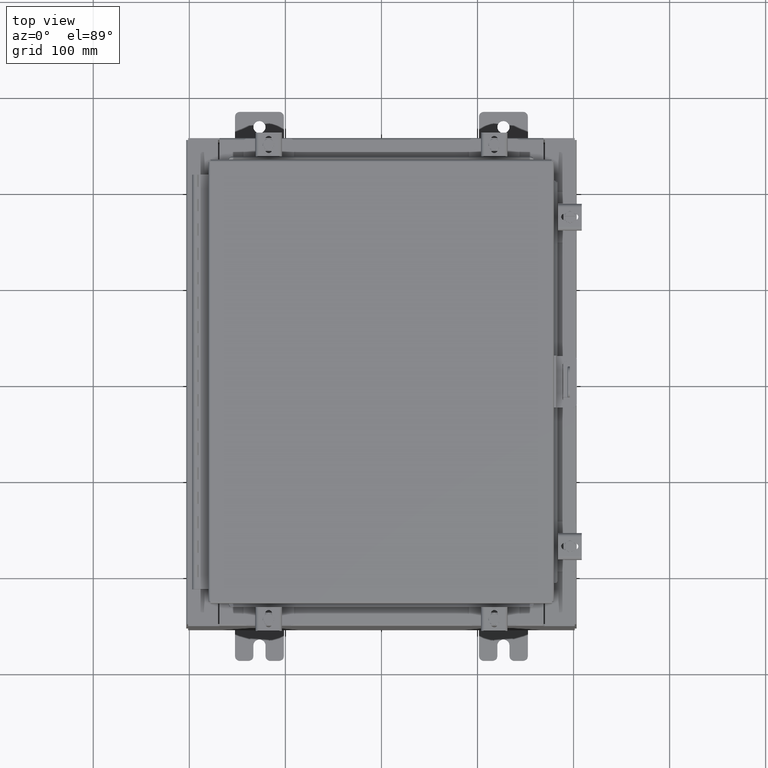
[diagram: clean part render]
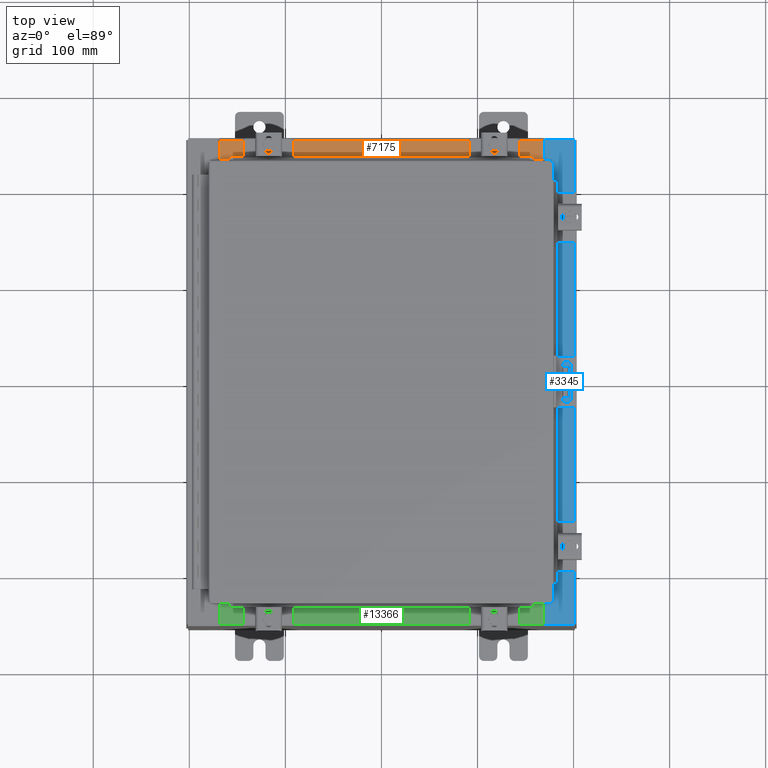
[diagram: same view with three faces highlighted in distinct colors, each labeled with its STEP entity id]
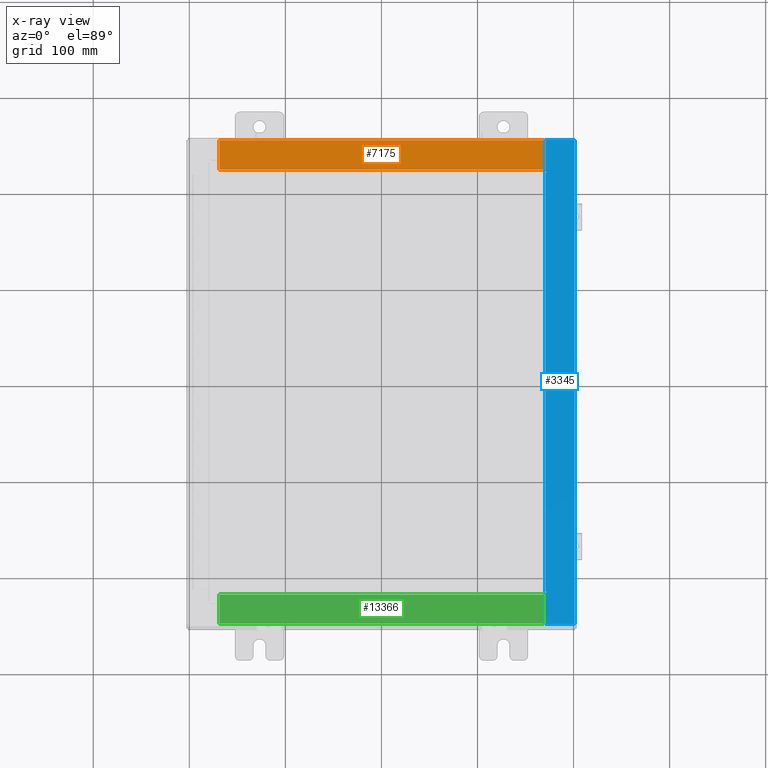
[diagram: x-ray of the same camera — body ghosted, the three highlighted faces saturated]
A machine part, top view with three faces highlighted in distinct colors.
The next image is the same camera in x-ray (body ghosted, the three faces saturated) — at least one of them is partly hidden behind the body in this view.
Their STEP definitions:

[orange] entity #7175 — the highlighted planar face has unit normal (0, 0, 1).
#70 = LINE ( 'NONE', #23277, #23620 ) ;
#561 = DIRECTION ( 'NONE',  ( -1.000000000000000000, 0.0000000000000000000, 0.0000000000000000000 ) ) ;
#709 = FACE_OUTER_BOUND ( 'NONE', #24726, .T. ) ;
#2360 = VERTEX_POINT ( 'NONE', #28132 ) ;
#2674 = ORIENTED_EDGE ( 'NONE', *, *, #19254, .T. ) ;
#5589 = EDGE_CURVE ( 'NONE', #19066, #2360, #15018, .T. ) ;
#5774 = VECTOR ( 'NONE', #13364, 39.37007874015748100 ) ;
#7175 = ADVANCED_FACE ( 'NONE', ( #709 ), #12864, .T. ) ;
#7626 = ORIENTED_EDGE ( 'NONE', *, *, #22999, .F. ) ;
#7715 = VERTEX_POINT ( 'NONE', #14905 ) ;
#8390 = DIRECTION ( 'NONE',  ( 0.0000000000000000000, -1.000000000000000000, 3.566381192773190000E-015 ) ) ;
#10143 = ORIENTED_EDGE ( 'NONE', *, *, #5589, .F. ) ;
#11087 = CARTESIAN_POINT ( 'NONE',  ( 6.637200000000000000, -1.300299999999999800, 5.000000000000005300 ) ) ;
#12363 = VECTOR ( 'NONE', #21803, 39.37007874015748100 ) ;
#12454 = AXIS2_PLACEMENT_3D ( 'NONE', #15121, #21988, #8390 ) ;
#12473 = LINE ( 'NONE', #11087, #5774 ) ;
#12864 = PLANE ( 'NONE',  #12454 ) ;
#13063 = LINE ( 'NONE', #19560, #12363 ) ;
#13364 = DIRECTION ( 'NONE',  ( -0.0000000000000000000, -1.000000000000000000, 3.566381192773190000E-015 ) ) ;
#14905 = CARTESIAN_POINT ( 'NONE',  ( 6.637199999999999100, -0.08769999999999993100, 5.000000000000000900 ) ) ;
#15018 = LINE ( 'NONE', #15391, #25717 ) ;
#15121 = CARTESIAN_POINT ( 'NONE',  ( 0.0000000000000000000, 1.782631094477738200E-014, 5.000000000000000900 ) ) ;
#15391 = CARTESIAN_POINT ( 'NONE',  ( 6.637200000000000900, -1.287299999999999900, 5.000000000000005300 ) ) ;
#15801 = CARTESIAN_POINT ( 'NONE',  ( 6.637200000000000000, -1.287299999999999900, 5.000000000000005300 ) ) ;
#19066 = VERTEX_POINT ( 'NONE', #15801 ) ;
#19254 = EDGE_CURVE ( 'NONE', #7715, #24268, #70, .T. ) ;
#19560 = CARTESIAN_POINT ( 'NONE',  ( -6.637200000000000000, -0.07469999999999973900, 5.000000000000000900 ) ) ;
#20757 = ORIENTED_EDGE ( 'NONE', *, *, #27043, .F. ) ;
#21803 = DIRECTION ( 'NONE',  ( -0.0000000000000000000, 1.000000000000000000, -3.566381192773190000E-015 ) ) ;
#21988 = DIRECTION ( 'NONE',  ( 0.0000000000000000000, 3.566381192773190000E-015, 1.000000000000000000 ) ) ;
#22999 = EDGE_CURVE ( 'NONE', #2360, #24268, #13063, .T. ) ;
#23277 = CARTESIAN_POINT ( 'NONE',  ( 0.0000000000000000000, -0.08770000000000026400, 5.000000000000000900 ) ) ;
#23620 = VECTOR ( 'NONE', #561, 39.37007874015748100 ) ;
#24268 = VERTEX_POINT ( 'NONE', #28689 ) ;
#24555 = DIRECTION ( 'NONE',  ( -1.000000000000000000, 0.0000000000000000000, 0.0000000000000000000 ) ) ;
#24726 = EDGE_LOOP ( 'NONE', ( #7626, #10143, #20757, #2674 ) ) ;
#25717 = VECTOR ( 'NONE', #24555, 39.37007874015748100 ) ;
#27043 = EDGE_CURVE ( 'NONE', #7715, #19066, #12473, .T. ) ;
#28132 = CARTESIAN_POINT ( 'NONE',  ( -6.637200000000000000, -1.287299999999999200, 5.000000000000005300 ) ) ;
#28689 = CARTESIAN_POINT ( 'NONE',  ( -6.637200000000000000, -0.08770000000000026400, 5.000000000000000900 ) ) ;

[blue] entity #3345 — the highlighted planar face has unit normal (-0, 0, -1).
#204 = CARTESIAN_POINT ( 'NONE',  ( 1.064530234139072600E-013, 9.925300000000019600, 9.925300000000055100 ) ) ;
#358 = DIRECTION ( 'NONE',  ( 1.000000000000000000, 0.0000000000000000000, 0.0000000000000000000 ) ) ;
#793 = VERTEX_POINT ( 'NONE', #1662 ) ;
#1340 = DIRECTION ( 'NONE',  ( -1.000000000000000000, 0.0000000000000000000, 7.132762385546378400E-015 ) ) ;
#1540 = EDGE_CURVE ( 'NONE', #2887, #7533, #16038, .T. ) ;
#1649 = FACE_OUTER_BOUND ( 'NONE', #22195, .T. ) ;
#1660 = CARTESIAN_POINT ( 'NONE',  ( 6.750050000000041600, -8.593750000000005300, 9.925300000000007100 ) ) ;
#1662 = CARTESIAN_POINT ( 'NONE',  ( 6.712700000000041600, -8.593750000000005300, 9.925300000000007100 ) ) ;
#1678 = CIRCLE ( 'NONE', #13348, 0.01867499999999949400 ) ;
#2078 = LINE ( 'NONE', #1660, #19513 ) ;
#2080 = CARTESIAN_POINT ( 'NONE',  ( 6.699700000000039100, -8.631100000000005300, 9.925300000000007100 ) ) ;
#2320 = VECTOR ( 'NONE', #21917, 39.37007874015748100 ) ;
#2334 = ORIENTED_EDGE ( 'NONE', *, *, #15256, .F. ) ;
#2757 = CARTESIAN_POINT ( 'NONE',  ( 6.699700000000036400, 9.925299999999992900, 9.925300000000007100 ) ) ;
#2887 = VERTEX_POINT ( 'NONE', #2080 ) ;
#3243 = VECTOR ( 'NONE', #6317, 39.37007874015748100 ) ;
#3345 = ADVANCED_FACE ( 'NONE', ( #1649 ), #9923, .F. ) ;
#3393 = LINE ( 'NONE', #15942, #20073 ) ;
#3795 = ORIENTED_EDGE ( 'NONE', *, *, #1540, .F. ) ;
#4268 = EDGE_CURVE ( 'NONE', #7774, #19858, #15099, .T. ) ;
#4361 = CARTESIAN_POINT ( 'NONE',  ( 5.335691853495954000E-014, -9.925299999999991100, 9.925300000000055100 ) ) ;
#4666 = DIRECTION ( 'NONE',  ( 1.100963394019027800E-016, -1.000000000000000000, -1.100963394019035600E-016 ) ) ;
#5387 = DIRECTION ( 'NONE',  ( -0.0000000000000000000, 1.000000000000000000, -0.0000000000000000000 ) ) ;
#5887 = CARTESIAN_POINT ( 'NONE',  ( 6.750050000000041600, -8.612425000000005300, 9.925300000000007100 ) ) ;
#6098 = EDGE_CURVE ( 'NONE', #19858, #8788, #15721, .T. ) ;
#6212 = DIRECTION ( 'NONE',  ( 7.132762385546378400E-015, -1.100963394019027700E-016, 1.000000000000000000 ) ) ;
#6317 = DIRECTION ( 'NONE',  ( 1.000000000000000000, 2.170286390199908100E-014, 0.0000000000000000000 ) ) ;
#6644 = DIRECTION ( 'NONE',  ( 1.000000000000000000, -1.783190596386598200E-015, -7.132762385546378400E-015 ) ) ;
#6934 = DIRECTION ( 'NONE',  ( -0.0000000000000000000, -1.000000000000000000, -1.100963394019027800E-016 ) ) ;
#7533 = VERTEX_POINT ( 'NONE', #27824 ) ;
#7622 = ORIENTED_EDGE ( 'NONE', *, *, #6098, .T. ) ;
#7774 = VERTEX_POINT ( 'NONE', #19595 ) ;
#7841 = CARTESIAN_POINT ( 'NONE',  ( 6.699700000000038200, -3.551267523747818500E-016, 9.925300000000007100 ) ) ;
#7917 = CARTESIAN_POINT ( 'NONE',  ( 6.699700000000036400, 8.631099999999994700, 9.925300000000007100 ) ) ;
#8134 = DIRECTION ( 'NONE',  ( 1.000000000000000000, 0.0000000000000000000, 0.0000000000000000000 ) ) ;
#8406 = ORIENTED_EDGE ( 'NONE', *, *, #22959, .F. ) ;
#8441 = EDGE_CURVE ( 'NONE', #7774, #24048, #18881, .T. ) ;
#8618 = AXIS2_PLACEMENT_3D ( 'NONE', #19779, #6212, #22057 ) ;
#8788 = VERTEX_POINT ( 'NONE', #7917 ) ;
#8962 = DIRECTION ( 'NONE',  ( -1.000000000000000000, 2.170286390199814100E-014, 0.0000000000000000000 ) ) ;
#9424 = EDGE_CURVE ( 'NONE', #22322, #793, #2078, .T. ) ;
#9923 = PLANE ( 'NONE',  #15699 ) ;
#10363 = CARTESIAN_POINT ( 'NONE',  ( 6.750050000000041600, -8.593750000000005300, 9.925300000000007100 ) ) ;
#11467 = CARTESIAN_POINT ( 'NONE',  ( 7.912300000000036500, -9.925300000000001800, 9.925299999999998200 ) ) ;
#12283 = EDGE_CURVE ( 'NONE', #12860, #24048, #24714, .T. ) ;
#12801 = VECTOR ( 'NONE', #6934, 39.37007874015748100 ) ;
#12805 = LINE ( 'NONE', #18970, #18156 ) ;
#12860 = VERTEX_POINT ( 'NONE', #27312 ) ;
#12922 = VECTOR ( 'NONE', #358, 39.37007874015748100 ) ;
#12944 = ORIENTED_EDGE ( 'NONE', *, *, #19226, .F. ) ;
#13029 = VERTEX_POINT ( 'NONE', #27985 ) ;
#13348 = AXIS2_PLACEMENT_3D ( 'NONE', #5887, #21717, #8134 ) ;
#15099 = LINE ( 'NONE', #204, #2320 ) ;
#15256 = EDGE_CURVE ( 'NONE', #21690, #18099, #24259, .T. ) ;
#15282 = DIRECTION ( 'NONE',  ( -1.000000000000000000, 0.0000000000000000000, 0.0000000000000000000 ) ) ;
#15699 = AXIS2_PLACEMENT_3D ( 'NONE', #17740, #19431, #1340 ) ;
#15721 = LINE ( 'NONE', #7841, #27076 ) ;
#15861 = ORIENTED_EDGE ( 'NONE', *, *, #8441, .F. ) ;
#15942 = CARTESIAN_POINT ( 'NONE',  ( 6.699700000000038200, -3.551267523747818500E-016, 9.925300000000007100 ) ) ;
#16038 = LINE ( 'NONE', #19302, #3243 ) ;
#16239 = EDGE_CURVE ( 'NONE', #793, #13029, #12805, .T. ) ;
#17377 = EDGE_CURVE ( 'NONE', #18099, #8788, #19109, .T. ) ;
#17740 = CARTESIAN_POINT ( 'NONE',  ( 7.105562016127543800E-014, -1.092739197465711600E-015, 9.925300000000055100 ) ) ;
#18099 = VERTEX_POINT ( 'NONE', #18887 ) ;
#18156 = VECTOR ( 'NONE', #5387, 39.37007874015748100 ) ;
#18395 = VECTOR ( 'NONE', #8962, 39.37007874015748100 ) ;
#18483 = EDGE_CURVE ( 'NONE', #2887, #12860, #3393, .T. ) ;
#18881 = LINE ( 'NONE', #11467, #12801 ) ;
#18887 = CARTESIAN_POINT ( 'NONE',  ( 6.750050000000041600, 8.631099999999994700, 9.925300000000007100 ) ) ;
#18970 = CARTESIAN_POINT ( 'NONE',  ( 6.712700000000041600, -8.593750000000005300, 9.925300000000007100 ) ) ;
#19109 = LINE ( 'NONE', #27185, #18395 ) ;
#19147 = CARTESIAN_POINT ( 'NONE',  ( 6.750050000000041600, 8.593749999999992900, 9.925300000000007100 ) ) ;
#19226 = EDGE_CURVE ( 'NONE', #13029, #21690, #25026, .T. ) ;
#19302 = CARTESIAN_POINT ( 'NONE',  ( 6.699700000000039100, -8.631100000000005300, 9.925300000000007100 ) ) ;
#19431 = DIRECTION ( 'NONE',  ( -7.132762385546378400E-015, 1.100963394019027600E-016, -1.000000000000000000 ) ) ;
#19513 = VECTOR ( 'NONE', #15282, 39.37007874015748100 ) ;
#19595 = CARTESIAN_POINT ( 'NONE',  ( 7.912300000000036500, 9.925299999999989400, 9.925299999999998200 ) ) ;
#19684 = ORIENTED_EDGE ( 'NONE', *, *, #16239, .F. ) ;
#19779 = CARTESIAN_POINT ( 'NONE',  ( 6.750050000000041600, 8.612424999999992900, 9.925300000000007100 ) ) ;
#19858 = VERTEX_POINT ( 'NONE', #2757 ) ;
#20073 = VECTOR ( 'NONE', #4666, 39.37007874015748100 ) ;
#20143 = ORIENTED_EDGE ( 'NONE', *, *, #12283, .T. ) ;
#21690 = VERTEX_POINT ( 'NONE', #19147 ) ;
#21717 = DIRECTION ( 'NONE',  ( 7.132762385546378400E-015, -1.100963394019027700E-016, 1.000000000000000000 ) ) ;
#21917 = DIRECTION ( 'NONE',  ( -1.000000000000000000, 3.566381192773190000E-015, 7.132762385546378400E-015 ) ) ;
#22057 = DIRECTION ( 'NONE',  ( 1.000000000000000000, 0.0000000000000000000, 0.0000000000000000000 ) ) ;
#22195 = EDGE_LOOP ( 'NONE', ( #3795, #22323, #20143, #15861, #25189, #7622, #22477, #2334, #12944, #19684, #23769, #8406 ) ) ;
#22322 = VERTEX_POINT ( 'NONE', #10363 ) ;
#22323 = ORIENTED_EDGE ( 'NONE', *, *, #18483, .T. ) ;
#22477 = ORIENTED_EDGE ( 'NONE', *, *, #17377, .F. ) ;
#22959 = EDGE_CURVE ( 'NONE', #7533, #22322, #1678, .T. ) ;
#23079 = CARTESIAN_POINT ( 'NONE',  ( 6.712700000000041600, 8.593749999999994700, 9.925300000000007100 ) ) ;
#23505 = CARTESIAN_POINT ( 'NONE',  ( 7.912300000000036500, -9.925300000000005300, 9.925299999999998200 ) ) ;
#23769 = ORIENTED_EDGE ( 'NONE', *, *, #9424, .F. ) ;
#24023 = VECTOR ( 'NONE', #6644, 39.37007874015748100 ) ;
#24048 = VERTEX_POINT ( 'NONE', #23505 ) ;
#24259 = CIRCLE ( 'NONE', #8618, 0.01867499999999949400 ) ;
#24714 = LINE ( 'NONE', #4361, #24023 ) ;
#25026 = LINE ( 'NONE', #23079, #12922 ) ;
#25189 = ORIENTED_EDGE ( 'NONE', *, *, #4268, .T. ) ;
#25995 = DIRECTION ( 'NONE',  ( 1.100963394019027800E-016, -1.000000000000000000, -1.100963394019035600E-016 ) ) ;
#27076 = VECTOR ( 'NONE', #25995, 39.37007874015748100 ) ;
#27185 = CARTESIAN_POINT ( 'NONE',  ( 6.750050000000041600, 8.631099999999994700, 9.925300000000007100 ) ) ;
#27312 = CARTESIAN_POINT ( 'NONE',  ( 6.699700000000039100, -9.925300000000001800, 9.925300000000007100 ) ) ;
#27824 = CARTESIAN_POINT ( 'NONE',  ( 6.750050000000041600, -8.631100000000005300, 9.925300000000007100 ) ) ;
#27985 = CARTESIAN_POINT ( 'NONE',  ( 6.712700000000041600, 8.593749999999994700, 9.925300000000007100 ) ) ;

[green] entity #13366 — the highlighted planar face has unit normal (-0, -0, 1).
#163 = DIRECTION ( 'NONE',  ( -1.000000000000000000, 0.0000000000000000000, 0.0000000000000000000 ) ) ;
#339 = AXIS2_PLACEMENT_3D ( 'NONE', #22430, #17973, #4398 ) ;
#586 = VECTOR ( 'NONE', #1131, 39.37007874015748100 ) ;
#594 = CARTESIAN_POINT ( 'NONE',  ( -6.637200000000000000, -0.07469999999999973900, 5.000000000000000900 ) ) ;
#1131 = DIRECTION ( 'NONE',  ( -1.000000000000000000, 0.0000000000000000000, 0.0000000000000000000 ) ) ;
#3252 = CARTESIAN_POINT ( 'NONE',  ( 6.637200000000000000, -1.287299999999999900, 5.000000000000005300 ) ) ;
#4398 = DIRECTION ( 'NONE',  ( 0.0000000000000000000, -1.000000000000000000, 3.566381192773190000E-015 ) ) ;
#4994 = VECTOR ( 'NONE', #163, 39.37007874015748100 ) ;
#5898 = EDGE_LOOP ( 'NONE', ( #11754, #27926, #8379, #18460 ) ) ;
#6169 = CARTESIAN_POINT ( 'NONE',  ( -6.637200000000000000, -1.287299999999999200, 5.000000000000005300 ) ) ;
#6706 = LINE ( 'NONE', #28247, #586 ) ;
#7513 = DIRECTION ( 'NONE',  ( -0.0000000000000000000, 1.000000000000000000, -3.566381192773190000E-015 ) ) ;
#7546 = EDGE_CURVE ( 'NONE', #21222, #21873, #10048, .T. ) ;
#8379 = ORIENTED_EDGE ( 'NONE', *, *, #10771, .F. ) ;
#10048 = LINE ( 'NONE', #594, #27416 ) ;
#10771 = EDGE_CURVE ( 'NONE', #20875, #11869, #18786, .T. ) ;
#11153 = CARTESIAN_POINT ( 'NONE',  ( -6.637200000000000000, -0.08770000000000026400, 5.000000000000000900 ) ) ;
#11586 = DIRECTION ( 'NONE',  ( -0.0000000000000000000, -1.000000000000000000, 3.566381192773190000E-015 ) ) ;
#11754 = ORIENTED_EDGE ( 'NONE', *, *, #7546, .F. ) ;
#11869 = VERTEX_POINT ( 'NONE', #3252 ) ;
#13366 = ADVANCED_FACE ( 'NONE', ( #16172 ), #29272, .T. ) ;
#16070 = CARTESIAN_POINT ( 'NONE',  ( 6.637200000000000000, -1.300299999999999800, 5.000000000000005300 ) ) ;
#16172 = FACE_OUTER_BOUND ( 'NONE', #5898, .T. ) ;
#17973 = DIRECTION ( 'NONE',  ( 0.0000000000000000000, 3.566381192773190000E-015, 1.000000000000000000 ) ) ;
#18053 = VECTOR ( 'NONE', #11586, 39.37007874015748100 ) ;
#18460 = ORIENTED_EDGE ( 'NONE', *, *, #29251, .T. ) ;
#18786 = LINE ( 'NONE', #16070, #18053 ) ;
#20750 = CARTESIAN_POINT ( 'NONE',  ( 6.637199999999999100, -0.08769999999999993100, 5.000000000000000900 ) ) ;
#20875 = VERTEX_POINT ( 'NONE', #20750 ) ;
#21222 = VERTEX_POINT ( 'NONE', #6169 ) ;
#21873 = VERTEX_POINT ( 'NONE', #11153 ) ;
#22022 = EDGE_CURVE ( 'NONE', #11869, #21222, #23110, .T. ) ;
#22430 = CARTESIAN_POINT ( 'NONE',  ( 0.0000000000000000000, 1.782631094477738200E-014, 5.000000000000000900 ) ) ;
#23110 = LINE ( 'NONE', #27438, #4994 ) ;
#27416 = VECTOR ( 'NONE', #7513, 39.37007874015748100 ) ;
#27438 = CARTESIAN_POINT ( 'NONE',  ( 6.637200000000000900, -1.287299999999999900, 5.000000000000005300 ) ) ;
#27926 = ORIENTED_EDGE ( 'NONE', *, *, #22022, .F. ) ;
#28247 = CARTESIAN_POINT ( 'NONE',  ( 0.0000000000000000000, -0.08770000000000026400, 5.000000000000000900 ) ) ;
#29251 = EDGE_CURVE ( 'NONE', #20875, #21873, #6706, .T. ) ;
#29272 = PLANE ( 'NONE',  #339 ) ;